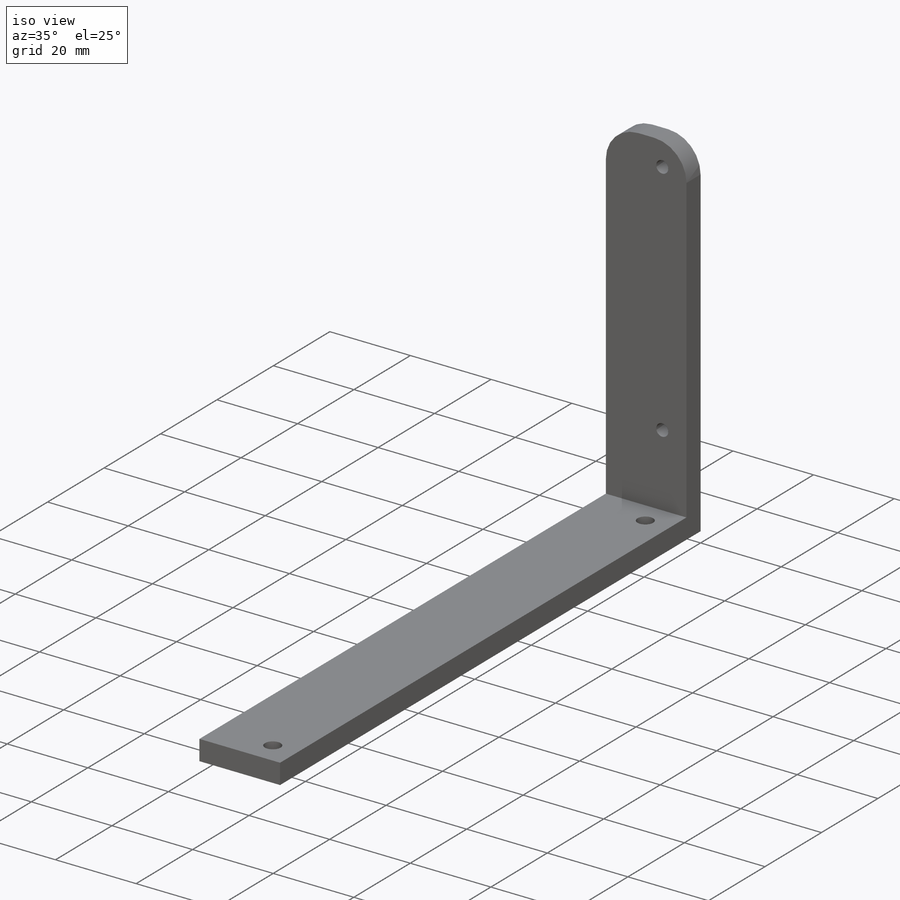
[diagram: iso view]
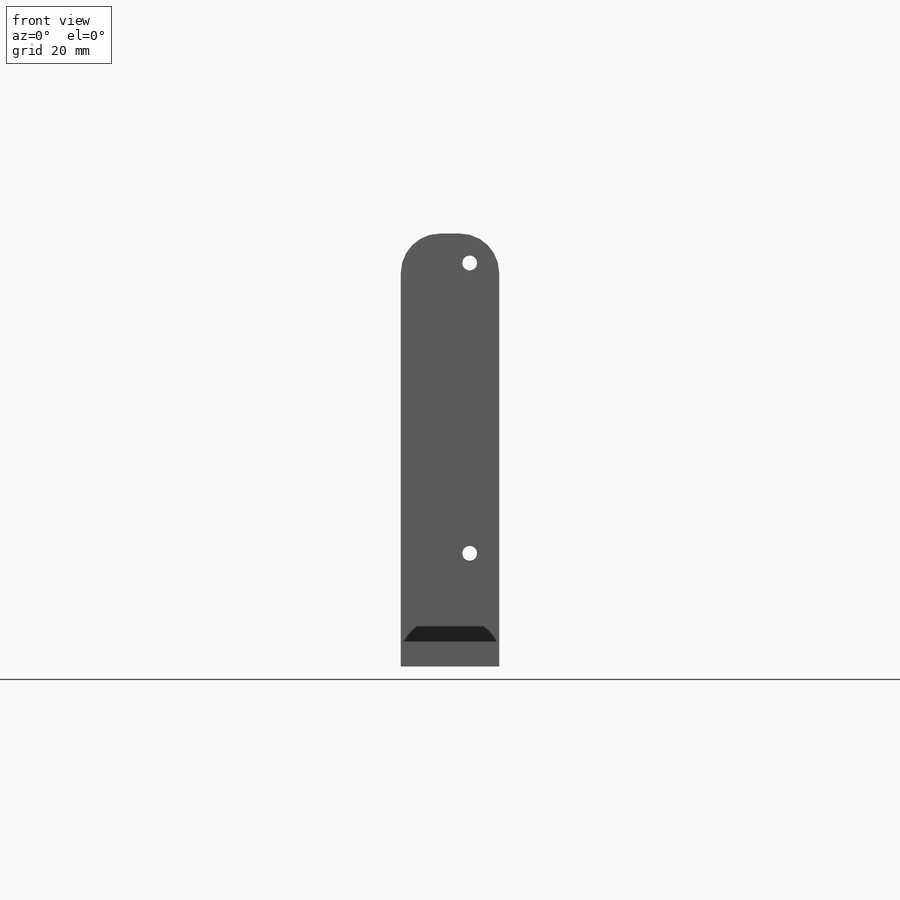
[diagram: front view]
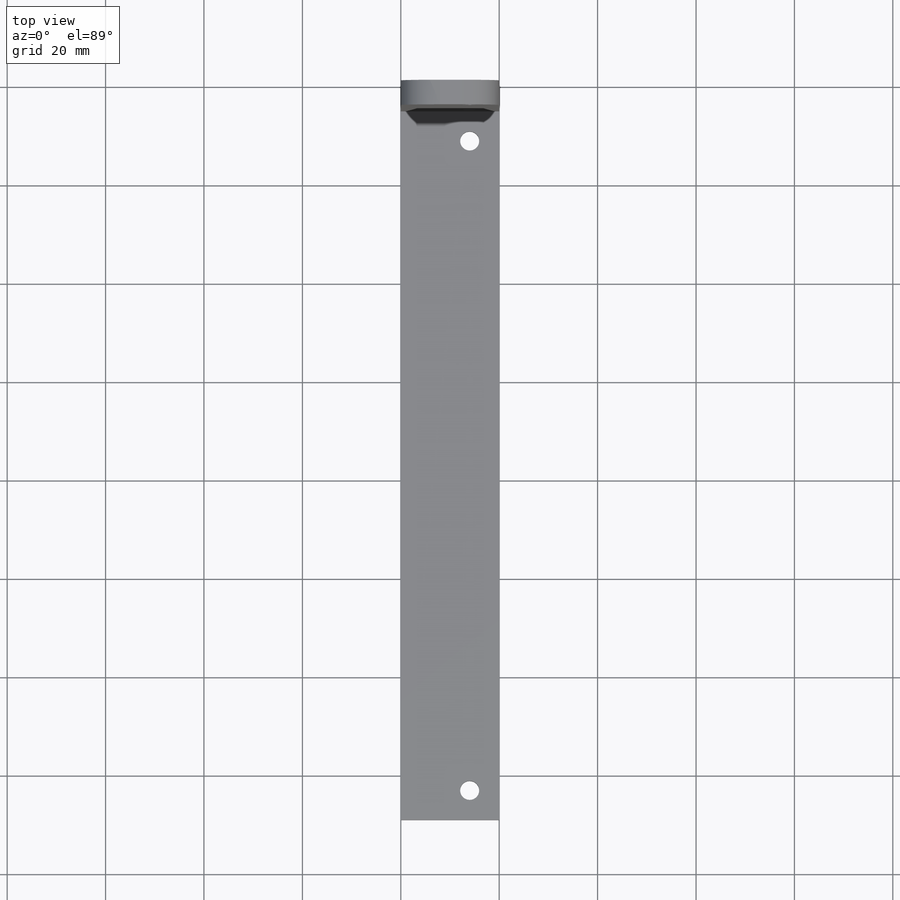
[diagram: top view]
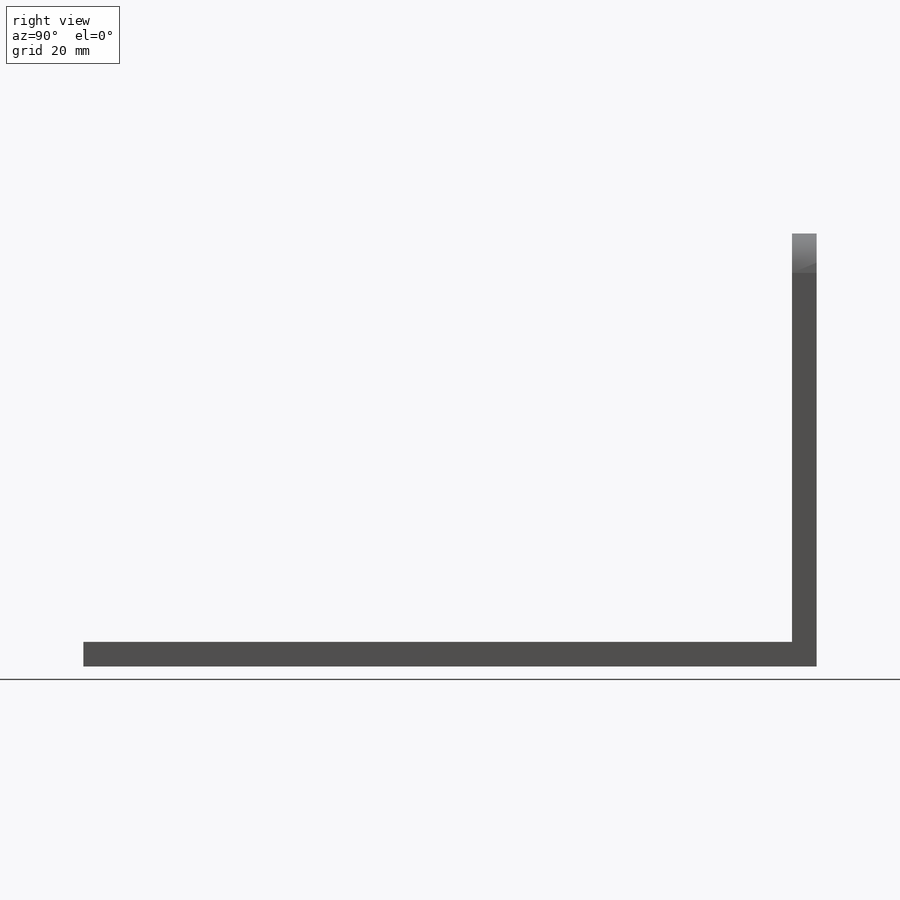
[diagram: right view]
SOLIDWORKS PART (.sldprt)
format: sldprt  version: not decoded by parser v0  size: 156,160 bytes
history: native  units: mm
features: sketch x3, extrude x2, material x1, fillet x1, cut_extrude x1 (+12 scaffold rows collapsed)
feature tree (20):
  scaffold x12  (default folders/planes/origin — collapsed)
  material  "Material <not specified>"
  sketch  "Sketch1"  dims[c1.D3=3.0mm c1.D1=88.0mm c1.D2=20.0mm c1.D4=6.0mm c1.D5=6.0mm c1.D6=59.0mm c2.D4=6.0mm]
  extrude  "Boss-Extrude1"  Depth=5mm
  sketch  "Sketch2"  dims[D1=5.0mm]
  extrude  "Boss-Extrude2"  Depth=144mm
  fillet  "Fillet1"  Radius=8mm
  sketch  "Sketch3"  dims[c1.D4=~3.878801mm c1.D3=~3.878801mm c1.D1=6.0mm c1.D2=6.0mm c2.D3=6.0mm c2.D4=~12.215513mm c2.D1=6.0mm c3.D4=6.0mm]
  cut_extrude  "Cut-Extrude1"  [1 undecoded]
decode coverage: 6 of 7 modeling features carry decoded parameters
note: ~ marks probable driven/reference dimensions
note: 1 parameter value undecoded
note: suppression state not decoded; provenance and decode notes live in map.json
